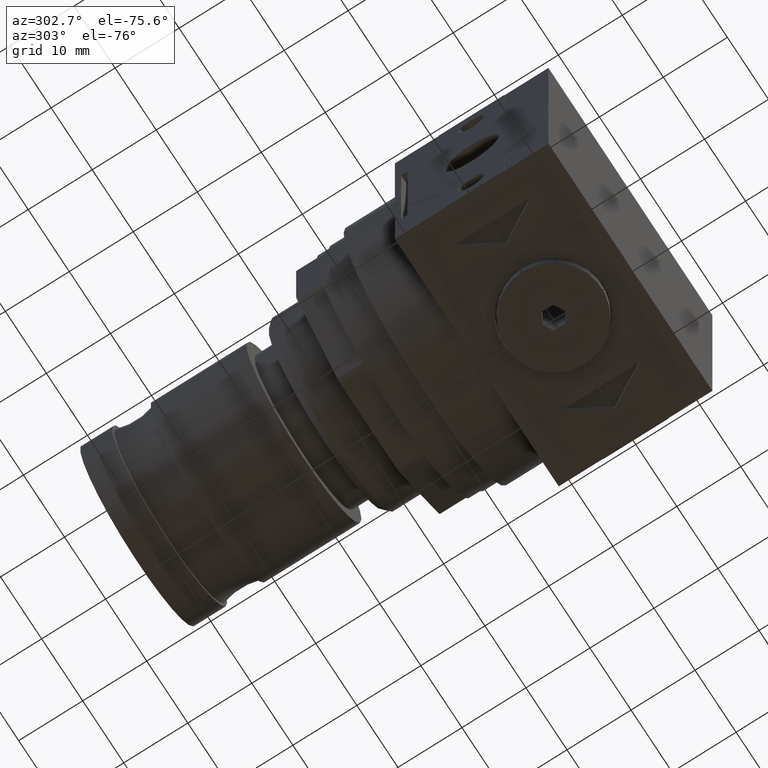
[diagram: clean part render]
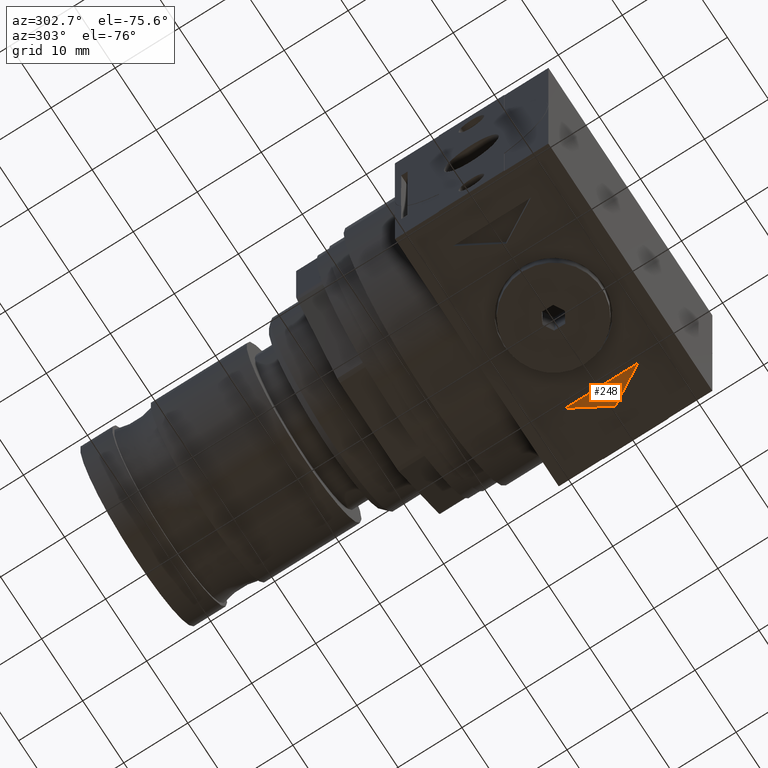
[diagram: same view with one face highlighted and labeled with its STEP entity id]
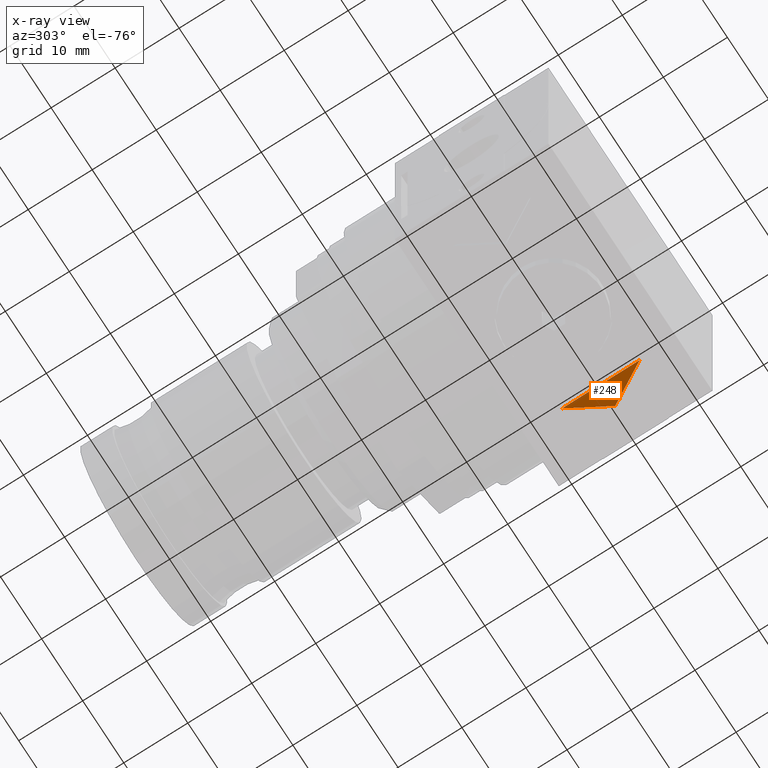
[diagram: x-ray of the same camera — body ghosted, the highlighted face saturated]
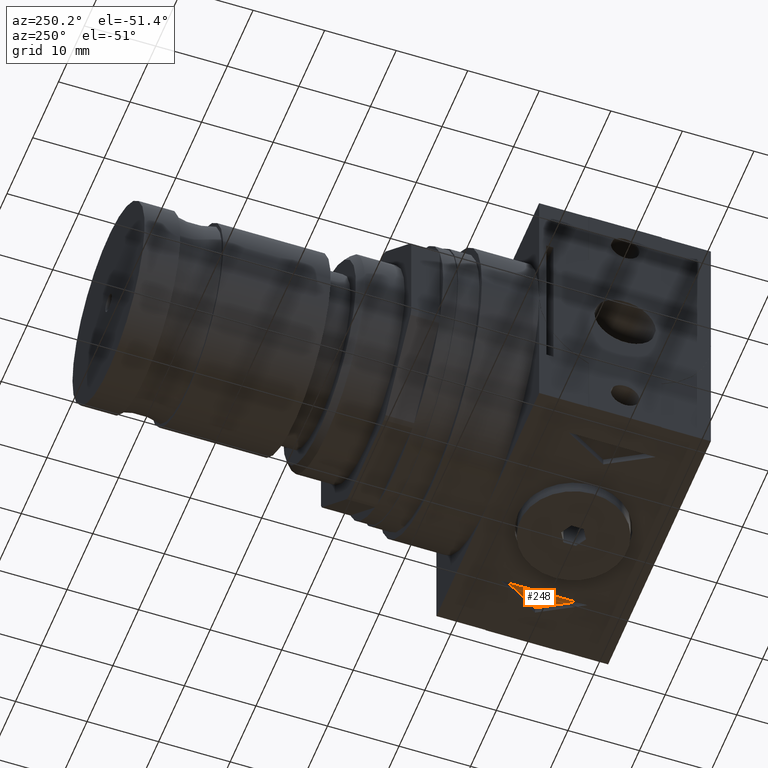
[diagram: same view with one face highlighted and labeled with its STEP entity id]
A machine part, auxiliary view. The second image highlights one B-rep face of the part: STEP entity #248.
The next image is the same camera in x-ray: the body ghosted, the highlighted face saturated — about 0% of this face is hidden behind the body in this view.
A second angle (auxiliary view) of the same face is appended — the face is thin or edge-on in the first view.
In plain terms, the highlighted planar face has unit normal (0, 0, -1).
Its self-contained STEP definition (entity closure, byte-faithful):
#248 = ADVANCED_FACE( '', ( #569 ), #570, .T. );
#569 = FACE_OUTER_BOUND( '', #1014, .T. );
#570 = PLANE( '', #1015 );
#1014 = EDGE_LOOP( '', ( #1528, #1529, #1530 ) );
#1015 = AXIS2_PLACEMENT_3D( '', #1531, #1532, #1533 );
#1528 = ORIENTED_EDGE( '', *, *, #2504, .F. );
#1529 = ORIENTED_EDGE( '', *, *, #2505, .F. );
#1530 = ORIENTED_EDGE( '', *, *, #2506, .F. );
#1531 = CARTESIAN_POINT( '', ( 0.000000000000000, 0.000000000000000, -19.0000000000000 ) );
#1532 = DIRECTION( '', ( 0.000000000000000, 0.000000000000000, -1.00000000000000 ) );
#1533 = DIRECTION( '', ( -1.00000000000000, 0.000000000000000, 0.000000000000000 ) );
#2504 = EDGE_CURVE( '', #2957, #2958, #2959, .T. );
#2505 = EDGE_CURVE( '', #2960, #2957, #2961, .T. );
#2506 = EDGE_CURVE( '', #2958, #2960, #2962, .T. );
#2957 = VERTEX_POINT( '', #3580 );
#2958 = VERTEX_POINT( '', #3581 );
#2959 = LINE( '', #3582, #3583 );
#2960 = VERTEX_POINT( '', #3584 );
#2961 = LINE( '', #3585, #3586 );
#2962 = LINE( '', #3587, #3588 );
#3580 = CARTESIAN_POINT( '', ( 15.0000000000000, 0.000000000000000, -19.0000000000000 ) );
#3581 = CARTESIAN_POINT( '', ( 11.5000000000000, 6.06217782649107, -19.0000000000000 ) );
#3582 = CARTESIAN_POINT( '', ( 15.0000000000000, 0.000000000000000, -19.0000000000000 ) );
#3583 = VECTOR( '', #4236, 1000.00000000000 );
#3584 = CARTESIAN_POINT( '', ( 11.5000000000000, -6.06217782649107, -19.0000000000000 ) );
#3585 = CARTESIAN_POINT( '', ( 11.5000000000000, -6.06217782649107, -19.0000000000000 ) );
#3586 = VECTOR( '', #4237, 1000.00000000000 );
#3587 = CARTESIAN_POINT( '', ( 11.5000000000000, 6.06217782649107, -19.0000000000000 ) );
#3588 = VECTOR( '', #4238, 1000.00000000000 );
#4236 = DIRECTION( '', ( -0.500000000000000, 0.866025403784439, 0.000000000000000 ) );
#4237 = DIRECTION( '', ( 0.500000000000000, 0.866025403784439, 0.000000000000000 ) );
#4238 = DIRECTION( '', ( 0.000000000000000, -1.00000000000000, 0.000000000000000 ) );